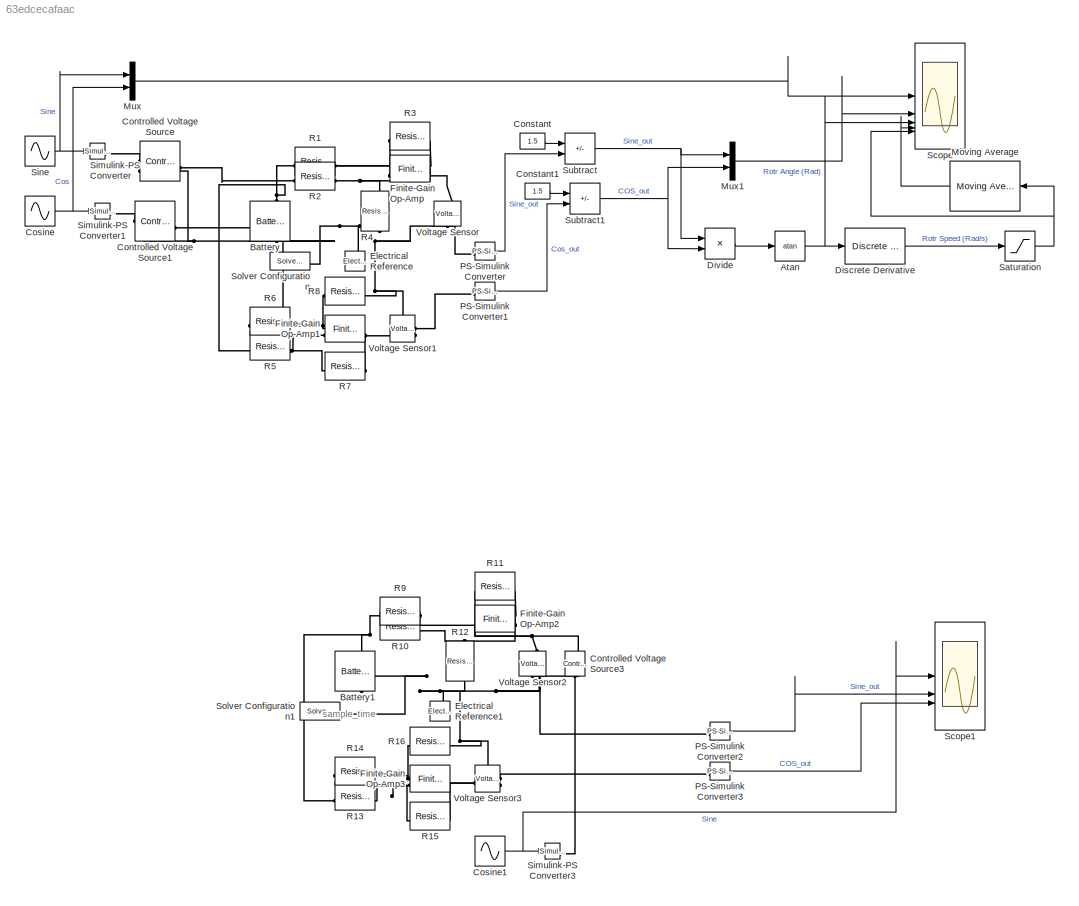
MODEL slx_63edcecafaac
KIND model
CONFIG AbsTol = auto
CONFIG EnableMultiTasking = off
CONFIG FixedStep = sample_time
CONFIG MaxStep = sample_time
CONFIG MinStep = 1e-6
CONFIG RelTol = 1e-3
CONFIG SampleTimeConstraint = Unconstrained
CONFIG SolverName = FixedStepAuto
CONFIG StartTime = 0.0
CONFIG StopTime = 10.0
BLOCK [Trigonometry] Atan
  Commented = on
  Operator = atan
  OutputSignalType = real
BLOCK [Reference] Battery  REF=batteryecm_lib/Battery
  Commented = on
  LibrarySourceBlock = batt_lib/Cells/Battery
  NameLocation = right
  SourceBlock = batteryecm_lib/Battery
  SourceType = Battery
BLOCK [Reference] Battery1  REF=batteryecm_lib/Battery
  Commented = on
  LibrarySourceBlock = batt_lib/Cells/Battery
  NameLocation = right
  SourceBlock = batteryecm_lib/Battery
  SourceType = Battery
BLOCK [Constant] Constant
  Commented = on
  Value = 1.5
BLOCK [Constant] Constant1
  Commented = on
  Value = 1.5
BLOCK [Reference] Controlled Voltage Source  REF=fl_lib/Electrical/Electrical Sources/Controlled Voltage
Source
  Commented = on
  SourceBlock = fl_lib/Electrical/Electrical Sources/Controlled Voltage\nSource
  SourceType = Controlled Voltage\nSource
BLOCK [Reference] Controlled Voltage Source1  REF=fl_lib/Electrical/Electrical Sources/Controlled Voltage
Source
  Commented = on
  SourceBlock = fl_lib/Electrical/Electrical Sources/Controlled Voltage\nSource
  SourceType = Controlled Voltage\nSource
BLOCK [Reference] Controlled Voltage Source3  REF=fl_lib/Electrical/Electrical Sources/Controlled Voltage
Source
  Commented = on
  NameLocation = right
  SourceBlock = fl_lib/Electrical/Electrical Sources/Controlled Voltage\nSource
  SourceType = Controlled Voltage\nSource
BLOCK [Sin] Cosine
  Bias = 3
  Commented = on
  Frequency = 500
  Phase = pi/2
  SampleTime = 0
BLOCK [Sin] Cosine1
  Bias = 3
  Commented = on
  Frequency = 500
  Phase = pi/2
  SampleTime = sample_time
  Samples = 1/sample_time
  SineType = Sample based
BLOCK [Reference] Discrete Derivative  REF=simulink/Discrete/Discrete Derivative
  Commented = on
  SourceBlock = simulink/Discrete/Discrete Derivative
  SourceType = Discrete Derivative
BLOCK [Product] Divide
  Commented = on
  Inputs = */
  OutDataTypeStr = single
  OutMax = 3.4e38
  OutMin = -3.4e38
  RndMeth = Nearest
BLOCK [Reference] Electrical Reference  REF=fl_lib/Electrical/Electrical Elements/Electrical Reference
  Commented = on
  NameLocation = right
  SourceBlock = fl_lib/Electrical/Electrical Elements/Electrical Reference
  SourceType = Electrical Reference
BLOCK [Reference] Electrical Reference1  REF=fl_lib/Electrical/Electrical Elements/Electrical Reference
  Commented = on
  NameLocation = right
  SourceBlock = fl_lib/Electrical/Electrical Elements/Electrical Reference
  SourceType = Electrical Reference
BLOCK [Reference] Finite-Gain Op-Amp  REF=ee_lib/Integrated Circuits/Finite-Gain Op-Amp
  Commented = on
  SourceBlock = ee_lib/Integrated Circuits/Finite-Gain Op-Amp
  SourceType = Finite-Gain Op-Amp
BLOCK [Reference] Finite-Gain Op-Amp1  REF=ee_lib/Integrated Circuits/Finite-Gain Op-Amp
  Commented = on
  SourceBlock = ee_lib/Integrated Circuits/Finite-Gain Op-Amp
  SourceType = Finite-Gain Op-Amp
BLOCK [Reference] Finite-Gain Op-Amp2  REF=ee_lib/Integrated Circuits/Finite-Gain Op-Amp
  Commented = on
  SourceBlock = ee_lib/Integrated Circuits/Finite-Gain Op-Amp
  SourceType = Finite-Gain Op-Amp
BLOCK [Reference] Finite-Gain Op-Amp3  REF=ee_lib/Integrated Circuits/Finite-Gain Op-Amp
  Commented = on
  SourceBlock = ee_lib/Integrated Circuits/Finite-Gain Op-Amp
  SourceType = Finite-Gain Op-Amp
BLOCK [Reference] Moving Average  REF=eeGeneralControl/Moving Average
  Commented = on
  LibrarySourceBlock = ee_sl_lib/General Control/Moving Average
  NameLocation = top
  SourceBlock = eeGeneralControl/Moving Average
  SourceType = Moving Average
BLOCK [Mux] Mux
  Commented = on
  DisplayOption = bar
  Inputs = 2
BLOCK [Mux] Mux1
  Commented = on
  DisplayOption = bar
  Inputs = 2
BLOCK [Reference] PS-Simulink Converter  REF=nesl_utility/PS-Simulink
Converter
  Commented = on
  SourceBlock = nesl_utility/PS-Simulink\nConverter
  SourceType = PS-Simulink\nConverter
BLOCK [Reference] PS-Simulink Converter1  REF=nesl_utility/PS-Simulink
Converter
  Commented = on
  SourceBlock = nesl_utility/PS-Simulink\nConverter
  SourceType = PS-Simulink\nConverter
BLOCK [Reference] PS-Simulink Converter2  REF=nesl_utility/PS-Simulink
Converter
  Commented = on
  SourceBlock = nesl_utility/PS-Simulink\nConverter
  SourceType = PS-Simulink\nConverter
BLOCK [Reference] PS-Simulink Converter3  REF=nesl_utility/PS-Simulink
Converter
  Commented = on
  SourceBlock = nesl_utility/PS-Simulink\nConverter
  SourceType = PS-Simulink\nConverter
BLOCK [Reference] R1  REF=fl_lib/Electrical/Electrical Elements/Resistor
  Commented = on
  NameLocation = top
  SourceBlock = fl_lib/Electrical/Electrical Elements/Resistor
  SourceType = Resistor
BLOCK [Reference] R10  REF=fl_lib/Electrical/Electrical Elements/Resistor
  Commented = on
  SourceBlock = fl_lib/Electrical/Electrical Elements/Resistor
  SourceType = Resistor
BLOCK [Reference] R11  REF=fl_lib/Electrical/Electrical Elements/Resistor
  Commented = on
  NameLocation = top
  SourceBlock = fl_lib/Electrical/Electrical Elements/Resistor
  SourceType = Resistor
BLOCK [Reference] R12  REF=fl_lib/Electrical/Electrical Elements/Resistor
  Commented = on
  NameLocation = right
  SourceBlock = fl_lib/Electrical/Electrical Elements/Resistor
  SourceType = Resistor
BLOCK [Reference] R13  REF=fl_lib/Electrical/Electrical Elements/Resistor
  Commented = on
  NameLocation = top
  SourceBlock = fl_lib/Electrical/Electrical Elements/Resistor
  SourceType = Resistor
BLOCK [Reference] R14  REF=fl_lib/Electrical/Electrical Elements/Resistor
  Commented = on
  NameLocation = top
  SourceBlock = fl_lib/Electrical/Electrical Elements/Resistor
  SourceType = Resistor
BLOCK [Reference] R15  REF=fl_lib/Electrical/Electrical Elements/Resistor
  Commented = on
  NameLocation = top
  SourceBlock = fl_lib/Electrical/Electrical Elements/Resistor
  SourceType = Resistor
BLOCK [Reference] R16  REF=fl_lib/Electrical/Electrical Elements/Resistor
  Commented = on
  SourceBlock = fl_lib/Electrical/Electrical Elements/Resistor
  SourceType = Resistor
BLOCK [Reference] R2  REF=fl_lib/Electrical/Electrical Elements/Resistor
  Commented = on
  SourceBlock = fl_lib/Electrical/Electrical Elements/Resistor
  SourceType = Resistor
BLOCK [Reference] R3  REF=fl_lib/Electrical/Electrical Elements/Resistor
  Commented = on
  NameLocation = top
  SourceBlock = fl_lib/Electrical/Electrical Elements/Resistor
  SourceType = Resistor
BLOCK [Reference] R4  REF=fl_lib/Electrical/Electrical Elements/Resistor
  Commented = on
  NameLocation = right
  SourceBlock = fl_lib/Electrical/Electrical Elements/Resistor
  SourceType = Resistor
BLOCK [Reference] R5  REF=fl_lib/Electrical/Electrical Elements/Resistor
  Commented = on
  NameLocation = top
  SourceBlock = fl_lib/Electrical/Electrical Elements/Resistor
  SourceType = Resistor
BLOCK [Reference] R6  REF=fl_lib/Electrical/Electrical Elements/Resistor
  Commented = on
  NameLocation = top
  SourceBlock = fl_lib/Electrical/Electrical Elements/Resistor
  SourceType = Resistor
BLOCK [Reference] R7  REF=fl_lib/Electrical/Electrical Elements/Resistor
  Commented = on
  NameLocation = top
  SourceBlock = fl_lib/Electrical/Electrical Elements/Resistor
  SourceType = Resistor
BLOCK [Reference] R8  REF=fl_lib/Electrical/Electrical Elements/Resistor
  Commented = on
  SourceBlock = fl_lib/Electrical/Electrical Elements/Resistor
  SourceType = Resistor
BLOCK [Reference] R9  REF=fl_lib/Electrical/Electrical Elements/Resistor
  Commented = on
  NameLocation = top
  SourceBlock = fl_lib/Electrical/Electrical Elements/Resistor
  SourceType = Resistor
BLOCK [Saturate] Saturation
  Commented = on
  LowerLimit = -speed_max*ppair
  UpperLimit = speed_max*ppair
BLOCK [Scope] Scope
  Commented = on
  Floating = off
  NumInputPorts = 5
  ScopeSpecificationString = Simulink.scopes.TimeScopeBlockCfg('CurrentConfiguration', extmgr.ConfigurationSet(extmgr.Configuration('Core','General UI',true),extmgr.Configuration('Core','Source UI',true),extmgr.Configuration('Sources','WiredSimulink',true),extmgr.Configuration('Visuals','Time Domain',true,'SerializedDisplays',{struct('MinYLimReal','1.75','MaxYLimReal','4.25','YLabelReal','','MinYLimMag','1.75','MaxYLimMag','4...<+4317ch>
BLOCK [Scope] Scope1
  Commented = on
  Floating = off
  NumInputPorts = 3
  ScopeSpecificationString = Simulink.scopes.TimeScopeBlockCfg('CurrentConfiguration', extmgr.ConfigurationSet(extmgr.Configuration('Core','General UI',true),extmgr.Configuration('Core','Source UI',true),extmgr.Configuration('Sources','WiredSimulink',true,'DataLoggingVariableName','ScopeData1'),extmgr.Configuration('Visuals','Time Domain',true,'SerializedDisplays',{struct('MinYLimReal','1.75','MaxYLimReal','4.25','YLabelReal'...<+3532ch>
BLOCK [Reference] Simulink-PS Converter  REF=nesl_utility/Simulink-PS
Converter
  Commented = on
  SourceBlock = nesl_utility/Simulink-PS\nConverter
  SourceType = Simulink-PS\nConverter
BLOCK [Reference] Simulink-PS Converter1  REF=nesl_utility/Simulink-PS
Converter
  Commented = on
  SourceBlock = nesl_utility/Simulink-PS\nConverter
  SourceType = Simulink-PS\nConverter
BLOCK [Reference] Simulink-PS Converter3  REF=nesl_utility/Simulink-PS
Converter
  Commented = on
  SourceBlock = nesl_utility/Simulink-PS\nConverter
  SourceType = Simulink-PS\nConverter
BLOCK [Sin] Sine
  Bias = 3
  Commented = on
  Frequency = 500
  SampleTime = 0
BLOCK [Reference] Solver Configuration  REF=nesl_utility/Solver
Configuration
  Commented = on
  SourceBlock = nesl_utility/Solver\nConfiguration
  SourceType = Solver\nConfiguration
BLOCK [Reference] Solver Configuration1  REF=nesl_utility/Solver
Configuration
  Commented = on
  SourceBlock = nesl_utility/Solver\nConfiguration
  SourceType = Solver\nConfiguration
BLOCK [Sum] Subtract
  Commented = on
  IconShape = rectangular
  Inputs = -+
BLOCK [Sum] Subtract1
  Commented = on
  IconShape = rectangular
  Inputs = -+
BLOCK [Reference] Voltage Sensor  REF=fl_lib/Electrical/Electrical Sensors/Voltage Sensor
  Commented = on
  NameLocation = right
  SourceBlock = fl_lib/Electrical/Electrical Sensors/Voltage Sensor
  SourceType = Voltage Sensor
BLOCK [Reference] Voltage Sensor1  REF=fl_lib/Electrical/Electrical Sensors/Voltage Sensor
  Commented = on
  SourceBlock = fl_lib/Electrical/Electrical Sensors/Voltage Sensor
  SourceType = Voltage Sensor
BLOCK [Reference] Voltage Sensor2  REF=fl_lib/Electrical/Electrical Sensors/Voltage Sensor
  Commented = on
  NameLocation = right
  SourceBlock = fl_lib/Electrical/Electrical Sensors/Voltage Sensor
  SourceType = Voltage Sensor
BLOCK [Reference] Voltage Sensor3  REF=fl_lib/Electrical/Electrical Sensors/Voltage Sensor
  Commented = on
  SourceBlock = fl_lib/Electrical/Electrical Sensors/Voltage Sensor
  SourceType = Voltage Sensor
ANNOTATION (root): sample_time
NET Atan:1 -> Discrete Derivative:1, Scope:3
LINE Constant1:1 -> Subtract1:1
LINE Constant:1 -> Subtract:1
NET Cosine1:1 -> Scope1:1, Simulink-PS Converter3:1
NET Cosine:1 -> Mux:2, Simulink-PS Converter1:1
LINE Discrete Derivative:1 -> Saturation:1
LINE Divide:1 -> Atan:1
LINE Moving Average:1 -> Scope:4
LINE Mux1:1 -> Scope:2
LINE Mux:1 -> Scope:1
LINE PS-Simulink Converter1:1 -> Subtract1:2
LINE PS-Simulink Converter2:1 -> Scope1:2
LINE PS-Simulink Converter3:1 -> Scope1:3
LINE PS-Simulink Converter:1 -> Subtract:2
NET Saturation:1 -> Moving Average:1, Scope:5
NET Sine:1 -> Mux:1, Simulink-PS Converter:1
NET Subtract1:1 -> Divide:2, Mux1:2
NET Subtract:1 -> Divide:1, Mux1:1
PNET net1: Battery1:LConn1 -- R13:RConn1 -- R9:RConn1
PNET net2: Battery1:RConn1 -- Controlled Voltage Source3:RConn2 -- Electrical Reference1:LConn1 -- R12:LConn1 -- R16:LConn1 -- Solver Configuration1:RConn1 -- Voltage Sensor2:RConn2 -- Voltage Sensor3:RConn2
PNET net3: Battery:LConn1 -- R1:RConn1 -- R5:RConn1
PNET net4: Battery:RConn1 -- Controlled Voltage Source1:RConn2 -- Controlled Voltage Source:RConn2 -- Electrical Reference:LConn1 -- R4:LConn1 -- R8:LConn1 -- Solver Configuration:RConn1 -- Voltage Sensor1:RConn2 -- Voltage Sensor:RConn2
PLINE Controlled Voltage Source1:LConn1 -- R6:LConn1
PLINE Controlled Voltage Source1:RConn1 -- Simulink-PS Converter1:RConn1
PNET net5: Controlled Voltage Source3:LConn1 -- Finite-Gain Op-Amp2:RConn1 -- R11:LConn1 -- Voltage Sensor2:LConn1
PLINE Controlled Voltage Source3:RConn1 -- Simulink-PS Converter3:RConn1
PLINE Controlled Voltage Source:LConn1 -- R2:LConn1
PLINE Controlled Voltage Source:RConn1 -- Simulink-PS Converter:RConn1
PNET net6: Finite-Gain Op-Amp1:LConn1 -- R6:RConn1 -- R8:RConn1
PNET net7: Finite-Gain Op-Amp1:LConn2 -- R5:LConn1 -- R7:RConn1
PNET net8: Finite-Gain Op-Amp1:RConn1 -- R7:LConn1 -- Voltage Sensor1:LConn1
PNET net9: Finite-Gain Op-Amp2:LConn1 -- R10:RConn1 -- R12:RConn1
PNET net10: Finite-Gain Op-Amp2:LConn2 -- R11:RConn1 -- R9:LConn1
PNET net11: Finite-Gain Op-Amp3:LConn1 -- R14:RConn1 -- R16:RConn1
PNET net12: Finite-Gain Op-Amp3:LConn2 -- R13:LConn1 -- R15:RConn1
PNET net13: Finite-Gain Op-Amp3:RConn1 -- R15:LConn1 -- Voltage Sensor3:LConn1
PNET net14: Finite-Gain Op-Amp:LConn1 -- R2:RConn1 -- R4:RConn1
PNET net15: Finite-Gain Op-Amp:LConn2 -- R1:LConn1 -- R3:RConn1
PNET net16: Finite-Gain Op-Amp:RConn1 -- R3:LConn1 -- Voltage Sensor:LConn1
PLINE PS-Simulink Converter1:LConn1 -- Voltage Sensor1:RConn1
PLINE PS-Simulink Converter2:LConn1 -- Voltage Sensor2:RConn1
PLINE PS-Simulink Converter3:LConn1 -- Voltage Sensor3:RConn1
PLINE PS-Simulink Converter:LConn1 -- Voltage Sensor:RConn1
note: NET lines group one-source signal fan-out (src -> all destinations, sorted); 1:1 wires keep LINE; PNET lines group multi-terminal physical nets as a canonical sorted terminal list (undirected conserving connections); 2-terminal nets keep the pairwise PLINE form
